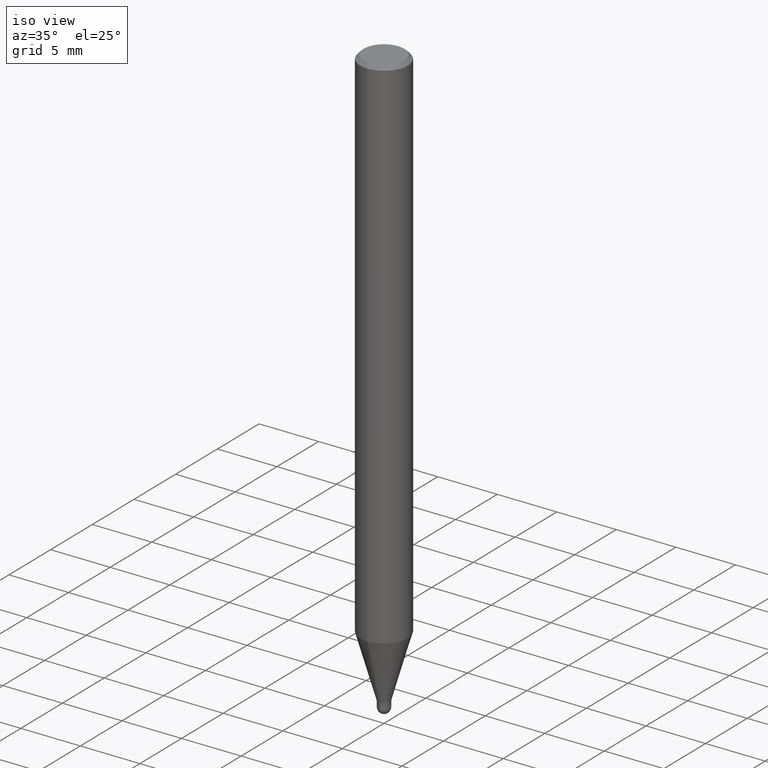
[diagram: clean part render]
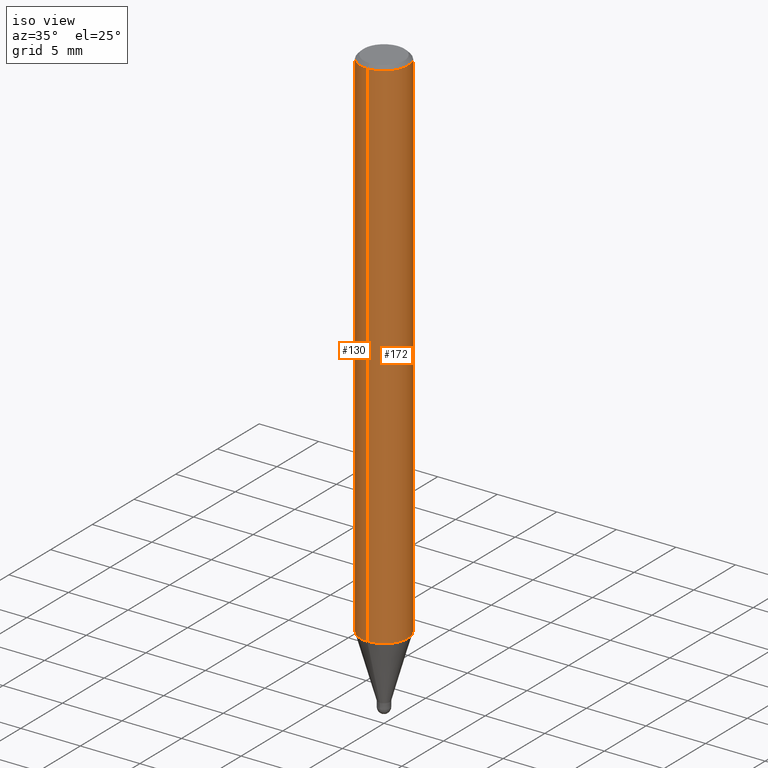
[diagram: same view with one multi-face feature highlighted, each face labeled with its STEP entity id]
A machine part, iso view. The highlighted faces form ONE feature: a constant-radius fillet chain: 2 tangent blend faces with common blend radius 2 mm. The faces share edges in the B-rep.
Their STEP definitions:
[1] entity #172 (Cylinder):
#86=EDGE_CURVE('',#162,#144,#211,.T.);
#88=VERTEX_POINT('',#213);
#110=EDGE_CURVE('',#144,#174,#238,.T.);
#144=VERTEX_POINT('',#275);
#156=EDGE_CURVE('',#88,#174,#288,.T.);
#162=VERTEX_POINT('',#295);
#164=EDGE_CURVE('',#88,#162,#297,.T.);
#172=ADVANCED_FACE('',(#306),#307,.T.);
#174=VERTEX_POINT('',#309);
#211=CIRCLE('',#344,2.0);
#213=CARTESIAN_POINT('',(0.0,2.0,-0.299999999999997));
#238=LINE('',#376,#377);
#275=CARTESIAN_POINT('',(2.44921270764475E-016,-2.0,-43.769));
#288=CIRCLE('',#439,2.0);
#295=CARTESIAN_POINT('',(0.0,2.0,-43.769));
#297=LINE('',#451,#452);
#306=FACE_OUTER_BOUND('',#462,.T.);
#307=CYLINDRICAL_SURFACE('',#463,2.0);
#309=CARTESIAN_POINT('',(2.44921270764475E-016,-2.0,-0.299999999999997));
#344=AXIS2_PLACEMENT_3D('',#493,#494,#495);
#376=CARTESIAN_POINT('',(2.44921270764475E-016,-2.0,-22.0345));
#377=VECTOR('',#527,1.0);
#439=AXIS2_PLACEMENT_3D('',#584,#585,#586);
#451=CARTESIAN_POINT('',(-2.44921270764475E-016,2.0,-22.0345));
#452=VECTOR('',#594,1.0);
#462=EDGE_LOOP('',(#605,#606,#607,#608));
#463=AXIS2_PLACEMENT_3D('',#609,#610,#611);
#493=CARTESIAN_POINT('',(0.0,0.0,-43.769));
#494=DIRECTION('',(0.0,0.0,-1.0));
#495=DIRECTION('',(0.0,1.0,0.0));
#527=DIRECTION('',(-0.0,-0.0,1.0));
#584=CARTESIAN_POINT('',(0.0,0.0,-0.299999999999997));
#585=DIRECTION('',(0.0,0.0,-1.0));
#586=DIRECTION('',(0.0,1.0,0.0));
#594=DIRECTION('',(0.0,0.0,-1.0));
#605=ORIENTED_EDGE('',*,*,#164,.F.);
#606=ORIENTED_EDGE('',*,*,#156,.T.);
#607=ORIENTED_EDGE('',*,*,#110,.F.);
#608=ORIENTED_EDGE('',*,*,#86,.F.);
#609=CARTESIAN_POINT('',(0.0,0.0,-22.0345));
#610=DIRECTION('',(-0.0,-0.0,1.0));
#611=DIRECTION('',(0.0,1.0,0.0));
[2] entity #130 (Cylinder):
#88=VERTEX_POINT('',#213);
#110=EDGE_CURVE('',#144,#174,#238,.T.);
#130=ADVANCED_FACE('',(#260),#261,.T.);
#144=VERTEX_POINT('',#275);
#146=EDGE_CURVE('',#174,#88,#277,.T.);
#162=VERTEX_POINT('',#295);
#164=EDGE_CURVE('',#88,#162,#297,.T.);
#166=EDGE_CURVE('',#144,#162,#299,.T.);
#174=VERTEX_POINT('',#309);
#213=CARTESIAN_POINT('',(0.0,2.0,-0.299999999999997));
#238=LINE('',#376,#377);
#260=FACE_OUTER_BOUND('',#401,.T.);
#261=CYLINDRICAL_SURFACE('',#402,2.0);
#275=CARTESIAN_POINT('',(2.44921270764475E-016,-2.0,-43.769));
#277=CIRCLE('',#422,2.0);
#295=CARTESIAN_POINT('',(0.0,2.0,-43.769));
#297=LINE('',#451,#452);
#299=CIRCLE('',#455,2.0);
#309=CARTESIAN_POINT('',(2.44921270764475E-016,-2.0,-0.299999999999997));
#376=CARTESIAN_POINT('',(2.44921270764475E-016,-2.0,-22.0345));
#377=VECTOR('',#527,1.0);
#401=EDGE_LOOP('',(#553,#554,#555,#556));
#402=AXIS2_PLACEMENT_3D('',#557,#558,#559);
#422=AXIS2_PLACEMENT_3D('',#568,#569,#570);
#451=CARTESIAN_POINT('',(-2.44921270764475E-016,2.0,-22.0345));
#452=VECTOR('',#594,1.0);
#455=AXIS2_PLACEMENT_3D('',#595,#596,#597);
#527=DIRECTION('',(-0.0,-0.0,1.0));
#553=ORIENTED_EDGE('',*,*,#164,.T.);
#554=ORIENTED_EDGE('',*,*,#166,.F.);
#555=ORIENTED_EDGE('',*,*,#110,.T.);
#556=ORIENTED_EDGE('',*,*,#146,.T.);
#557=CARTESIAN_POINT('',(0.0,0.0,-22.0345));
#558=DIRECTION('',(-0.0,-0.0,1.0));
#559=DIRECTION('',(0.0,1.0,0.0));
#568=CARTESIAN_POINT('',(0.0,0.0,-0.299999999999997));
#569=DIRECTION('',(0.0,0.0,-1.0));
#570=DIRECTION('',(0.0,1.0,0.0));
#594=DIRECTION('',(0.0,0.0,-1.0));
#595=CARTESIAN_POINT('',(0.0,0.0,-43.769));
#596=DIRECTION('',(0.0,0.0,-1.0));
#597=DIRECTION('',(0.0,1.0,0.0));